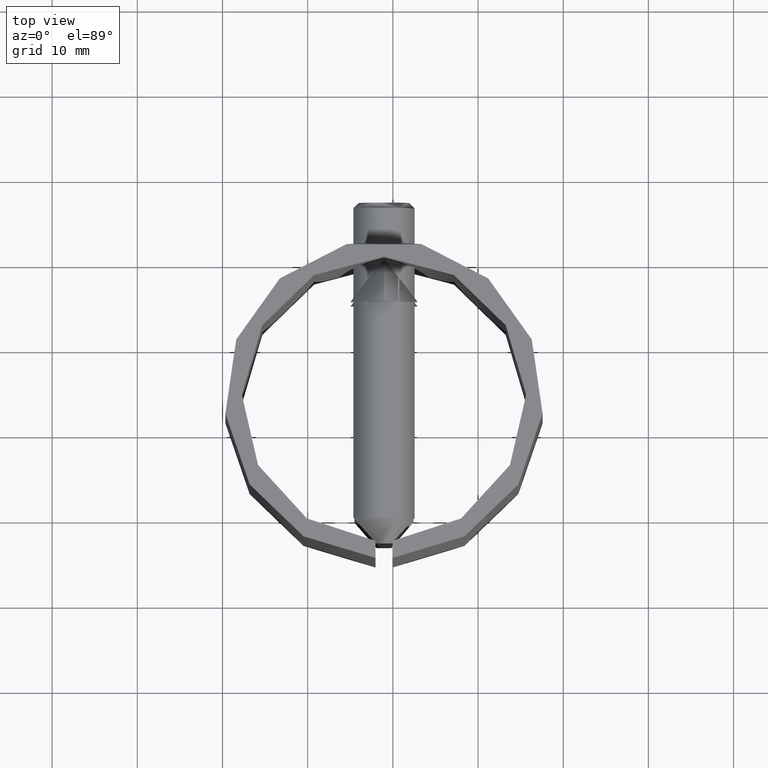
[diagram: clean part render]
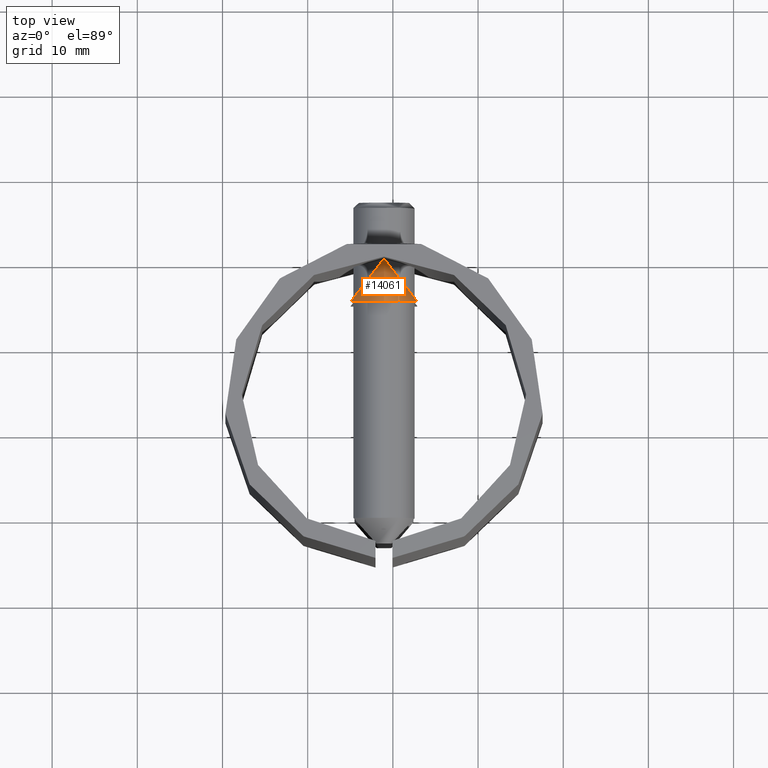
[diagram: same view with one face highlighted and labeled with its STEP entity id]
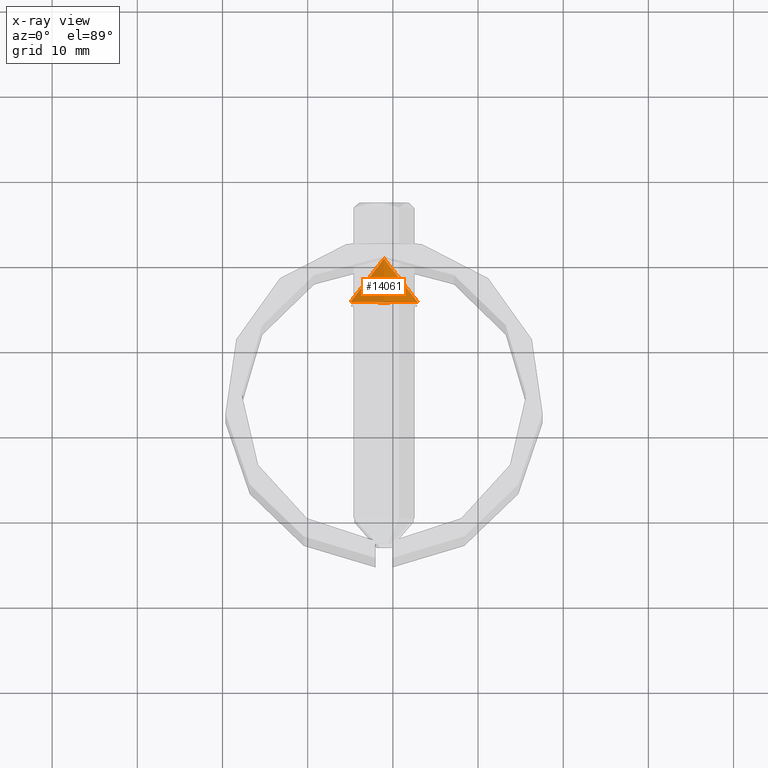
[diagram: x-ray of the same camera — body ghosted, the highlighted face saturated]
A machine part, top view. The second image highlights one B-rep face of the part: STEP entity #14061.
The next image is the same camera in x-ray: the body ghosted, the highlighted face saturated — about 0% of this face is hidden behind the body in this view.
In plain terms, the highlighted cylindrical surface (bore or boss wall) has radius 4.5 mm, axis along (0, 1, 0).
Its self-contained STEP definition (entity closure, byte-faithful):
#117 = CIRCLE ( 'NONE', #817, 4.500000000000000888 ) ;
#160 = ORIENTED_EDGE ( 'NONE', *, *, #1329, .F. ) ;
#506 = CARTESIAN_POINT ( 'NONE',  ( 4.470890491198900030, 16.09051785570603954, 15.59079842216551093 ) ) ;
#559 = CARTESIAN_POINT ( 'NONE',  ( -4.268515495040690055, 16.14570043999957960, 13.54471098470745893 ) ) ;
#608 = CARTESIAN_POINT ( 'NONE',  ( 2.748375749379027955, 16.47412802908328189, 11.42479650578395400 ) ) ;
#656 = CARTESIAN_POINT ( 'NONE',  ( -2.746643343665635228, 16.47442991180666994, 11.42339148774129143 ) ) ;
#768 = CARTESIAN_POINT ( 'NONE',  ( -0.5930302896287636960, 16.69199008653702165, 19.47053234141733213 ) ) ;
#817 = AXIS2_PLACEMENT_3D ( 'NONE', #11650, #10415, #4516 ) ;
#1329 = EDGE_CURVE ( 'NONE', #1750, #1750, #8786, .T. ) ;
#1678 = CARTESIAN_POINT ( 'NONE',  ( -0.2925769808828751484, 16.70003373056801976, 10.49987482210366352 ) ) ;
#1721 = CARTESIAN_POINT ( 'NONE',  ( 2.000204359931899933, 16.58204028912541617, 19.04179059477910840 ) ) ;
#1750 = VERTEX_POINT ( 'NONE', #8645 ) ;
#1780 = CARTESIAN_POINT ( 'NONE',  ( 4.499808343424470891, 16.08234202197142437, 15.29791367726360640 ) ) ;
#1784 = CYLINDRICAL_SURFACE ( 'NONE', #5637, 4.500000000000000888 ) ;
#1831 = CARTESIAN_POINT ( 'NONE',  ( 2.258148842555752545, 16.54846508949552941, 18.90345852644554725 ) ) ;
#1887 = CARTESIAN_POINT ( 'NONE',  ( 3.902897937544604456, 16.23838654004546811, 12.74105340024263988 ) ) ;
#1937 = CARTESIAN_POINT ( 'NONE',  ( -1.459701212497980016, 16.63831447223115134, 19.26678564235425029 ) ) ;
#2884 = CARTESIAN_POINT ( 'NONE',  ( 4.267554316713609630, 16.14594239223548655, 16.45730534514077092 ) ) ;
#2940 = CARTESIAN_POINT ( 'NONE',  ( -3.901566149001846284, 16.23870721294601793, 12.73877067598393253 ) ) ;
#3037 = CARTESIAN_POINT ( 'NONE',  ( -4.471188628227773521, 16.09043278604966076, 15.58779499729386764 ) ) ;
#3091 = CARTESIAN_POINT ( 'NONE',  ( -4.040401178127398296, 16.20429034389941236, 12.99669049589926750 ) ) ;
#3147 = CARTESIAN_POINT ( 'NONE',  ( -1.172625383541805233, 16.66130750221423895, 19.35457162645752049 ) ) ;
#3290 = DIRECTION ( 'NONE',  ( 0.000000000000000000, 0.000000000000000000, 1.000000000000000000 ) ) ;
#3799 = EDGE_LOOP ( 'NONE', ( #12874 ) ) ;
#4095 = CARTESIAN_POINT ( 'NONE',  ( 3.389144942174509012, 16.35383519160921040, 17.97472346730088688 ) ) ;
#4141 = CARTESIAN_POINT ( 'NONE',  ( 4.269806211873104829, 16.14535411475638682, 13.54869544088589173 ) ) ;
#4183 = CARTESIAN_POINT ( 'NONE',  ( 1.998589146683237949, 16.58222250743602544, 10.95747186581912125 ) ) ;
#4231 = CARTESIAN_POINT ( 'NONE',  ( 3.574898314709949343, 16.31375436233777876, 17.74909251273416899 ) ) ;
#4284 = CARTESIAN_POINT ( 'NONE',  ( -2.259531450430126487, 16.54828641249962473, 18.90272636191454581 ) ) ;
#4516 = DIRECTION ( 'NONE',  ( 0.000000000000000000, 0.000000000000000000, -1.000000000000000000 ) ) ;
#5215 = CARTESIAN_POINT ( 'NONE',  ( -3.387629732327249066, 16.35416474197154102, 12.02340942405186652 ) ) ;
#5260 = CARTESIAN_POINT ( 'NONE',  ( 0.2964150078807203381, 16.69996604891623804, 10.50012599625477172 ) ) ;
#5327 = EDGE_LOOP ( 'NONE', ( #160 ) ) ;
#5367 = CARTESIAN_POINT ( 'NONE',  ( 1.175174152185601395, 16.66113198993156530, 10.64609741612724925 ) ) ;
#5406 = CARTESIAN_POINT ( 'NONE',  ( 2.262154153437302195, 16.54790386014157022, 11.09893503374838630 ) ) ;
#5637 = AXIS2_PLACEMENT_3D ( 'NONE', #15244, #8067, #3290 ) ;
#6378 = CARTESIAN_POINT ( 'NONE',  ( 1.455761788551132918, 16.63866639723124763, 10.73184467153801869 ) ) ;
#6438 = CARTESIAN_POINT ( 'NONE',  ( 4.042686735624697825, 16.20370820328149009, 16.99810977493253716 ) ) ;
#6492 = CARTESIAN_POINT ( 'NONE',  ( 3.903844913162763497, 16.23817952386241004, 17.25774278828663100 ) ) ;
#6590 = CARTESIAN_POINT ( 'NONE',  ( 0.5951172566808970998, 16.69191986934656668, 10.52972736305494905 ) ) ;
#7598 = CARTESIAN_POINT ( 'NONE',  ( -4.043645610435443238, 16.20347013482832921, 16.99629666837947539 ) ) ;
#7648 = CARTESIAN_POINT ( 'NONE',  ( -2.972335163148599690, 16.43471822967473273, 11.60863591779337334 ) ) ;
#7694 = CARTESIAN_POINT ( 'NONE',  ( 4.355199484842283475, 16.12221508448604723, 13.82988731795292736 ) ) ;
#7754 = CARTESIAN_POINT ( 'NONE',  ( -1.995316474912114391, 16.58261225314001308, 10.95588233425839597 ) ) ;
#7810 = CARTESIAN_POINT ( 'NONE',  ( -4.500130708670076807, 16.08225182066961167, 15.29477749636082784 ) ) ;
#7856 = CARTESIAN_POINT ( 'NONE',  ( -2.977698323745668674, 16.43372945742652647, 18.38651910219816443 ) ) ;
#8067 = DIRECTION ( 'NONE',  ( -0.000000000000000000, 1.000000000000000000, 0.000000000000000000 ) ) ;
#8626 = VERTEX_POINT ( 'NONE', #9844 ) ;
#8645 = CARTESIAN_POINT ( 'NONE',  ( 0.000000000000000000, 16.69999999999999929, 19.50000000000000000 ) ) ;
#8780 = CARTESIAN_POINT ( 'NONE',  ( 0.2987731304651032316, 16.69999999999999929, 19.49999999999999645 ) ) ;
#8786 = B_SPLINE_CURVE_WITH_KNOTS ( 'NONE', 3,
 ( #13647, #8780, #11357, #14758, #13703, #1721, #1831, #13590, #9971, #4095, #4231, #6492, #6438, #2884, #14816, #506, #1780, #8831, #11261, #7694, #4141, #12290, #1887, #10177, #12444, #12342, #608, #5406, #4183, #6378, #5367, #6590, #5260, #1678, #11162, #10064, #14877, #7754, #13553, #656, #7648, #5215, #14921, #2940, #3091, #559, #8936, #10123, #11208, #7810, #3037, #11313, #14703, #7598, #10021, #13798, #13752, #7856, #12597, #4284, #9039, #1937, #3147, #768, #10228, #11405 ),
 .UNSPECIFIED., .T., .F.,
 ( 4, 2, 2, 2, 2, 2, 2, 2, 2, 2, 2, 2, 2, 2, 2, 2, 2, 2, 2, 2, 2, 2, 2, 2, 2, 2, 2, 2, 2, 2, 2, 2, 4 ),
 ( 0.000000000000000000, 0.0008832960947161931078, 0.001766592189432386216, 0.002649888284148580516, 0.003533184378864774166, 0.004416480473580967382, 0.005299776568297161032, 0.006183072663013353815, 0.007066368757729546597, 0.007949664852445739380, 0.008832960947161933030, 0.009716257041878126680, 0.01059955313659432033, 0.01148284923131051224, 0.01236614532602670589, 0.01324944142074289954, 0.01413273751545909319, 0.01501603361017528684, 0.01589932970489147876, 0.01678262579960767414, 0.01766592189432386606, 0.01854921798904005797, 0.01943251408375625336, 0.02031581017847244527, 0.02119910627318864066, 0.02208240236790483257, 0.02296569846262102102, 0.02384899455733721294, 0.02473229065205340138, 0.02561558674676958983, 0.02649888284148578174, 0.02738217893620197366, 0.02826547503091816210 ),
 .UNSPECIFIED. ) ;
#8831 = CARTESIAN_POINT ( 'NONE',  ( 4.500189775828866701, 16.08223529304137855, 14.70790469333016226 ) ) ;
#8839 = FACE_OUTER_BOUND ( 'NONE', #5327, .T. ) ;
#8936 = CARTESIAN_POINT ( 'NONE',  ( -4.354406454622889555, 16.12242947765906464, 13.82718727196515651 ) ) ;
#9039 = CARTESIAN_POINT ( 'NONE',  ( -2.001693100911048351, 16.58184129813059826, 19.04096672559098380 ) ) ;
#9844 = CARTESIAN_POINT ( 'NONE',  ( 0.000000000000000000, 11.69999999999999929, 10.49999999999999822 ) ) ;
#9971 = CARTESIAN_POINT ( 'NONE',  ( 2.976240692757665229, 16.43399586990809524, 18.38781264014864547 ) ) ;
#10021 = CARTESIAN_POINT ( 'NONE',  ( -3.905549439049976979, 16.23776621333881209, 17.25476297301918294 ) ) ;
#10064 = CARTESIAN_POINT ( 'NONE',  ( -1.171543008678396891, 16.66142853428618409, 10.64496206500182574 ) ) ;
#10123 = CARTESIAN_POINT ( 'NONE',  ( -4.469946807488210716, 16.09077883050963464, 14.40340901337015644 ) ) ;
#10177 = CARTESIAN_POINT ( 'NONE',  ( 3.577846108863577346, 16.31308759726709567, 12.25510122723349937 ) ) ;
#10228 = CARTESIAN_POINT ( 'NONE',  ( -0.2987731304651019548, 16.69999999999999929, 19.49999999999999645 ) ) ;
#10415 = DIRECTION ( 'NONE',  ( 0.000000000000000000, -1.000000000000000000, 0.000000000000000000 ) ) ;
#11162 = CARTESIAN_POINT ( 'NONE',  ( -0.5868165279462986827, 16.69225449682690154, 10.52847735117159012 ) ) ;
#11208 = CARTESIAN_POINT ( 'NONE',  ( -4.499868412494326009, 16.08232521399758141, 14.70124518796846225 ) ) ;
#11261 = CARTESIAN_POINT ( 'NONE',  ( 4.470640906022956607, 16.09058580886955880, 14.40814179835695974 ) ) ;
#11313 = CARTESIAN_POINT ( 'NONE',  ( -4.356181262843054292, 16.12194900738834846, 16.16649711242341425 ) ) ;
#11357 = CARTESIAN_POINT ( 'NONE',  ( 0.5922852173470245507, 16.69199408748207603, 19.47054250787893892 ) ) ;
#11405 = CARTESIAN_POINT ( 'NONE',  ( 1.084202172485504434E-16, 16.69999999999999929, 19.49999999999999645 ) ) ;
#11650 = CARTESIAN_POINT ( 'NONE',  ( 0.000000000000000000, 11.69999999999999929, 15.00000000000000000 ) ) ;
#12290 = CARTESIAN_POINT ( 'NONE',  ( 4.043040720485009842, 16.20362694924599367, 13.00216323420666065 ) ) ;
#12342 = CARTESIAN_POINT ( 'NONE',  ( 2.974034781528952731, 16.43441706392892243, 11.61005058271652324 ) ) ;
#12444 = CARTESIAN_POINT ( 'NONE',  ( 3.390280586799457208, 16.35362175958809061, 12.02634274398422498 ) ) ;
#12597 = CARTESIAN_POINT ( 'NONE',  ( -2.748971595949051938, 16.47405295397184233, 18.57490008197865450 ) ) ;
#12874 = ORIENTED_EDGE ( 'NONE', *, *, #15035, .F. ) ;
#12895 = FACE_OUTER_BOUND ( 'NONE', #3799, .T. ) ;
#13553 = CARTESIAN_POINT ( 'NONE',  ( -2.258696272588159637, 16.54838909756865917, 11.09686417665736613 ) ) ;
#13590 = CARTESIAN_POINT ( 'NONE',  ( 2.746267986077399303, 16.47449377559245320, 18.57690324323467124 ) ) ;
#13647 = CARTESIAN_POINT ( 'NONE',  ( 1.084202172485504434E-16, 16.69999999999999929, 19.49999999999999645 ) ) ;
#13703 = CARTESIAN_POINT ( 'NONE',  ( 1.455866566075790791, 16.63866972367237551, 19.26817774176733167 ) ) ;
#13752 = CARTESIAN_POINT ( 'NONE',  ( -3.390233381764852005, 16.35360721077442392, 17.97346877467345649 ) ) ;
#13798 = CARTESIAN_POINT ( 'NONE',  ( -3.577255866272028406, 16.31323415166757940, 17.74599944511725980 ) ) ;
#14061 = ADVANCED_FACE ( 'NONE', ( #8839, #12895 ), #1784, .T. ) ;
#14703 = CARTESIAN_POINT ( 'NONE',  ( -4.268831468465055679, 16.14560596964108541, 16.45373591302521987 ) ) ;
#14758 = CARTESIAN_POINT ( 'NONE',  ( 1.169298940864851977, 16.66151878977774814, 19.35537507917890920 ) ) ;
#14816 = CARTESIAN_POINT ( 'NONE',  ( 4.354728083730723398, 16.12234381117877646, 16.17228318963163503 ) ) ;
#14877 = CARTESIAN_POINT ( 'NONE',  ( -1.453007278012548475, 16.63890281307897823, 10.73093155601113580 ) ) ;
#14921 = CARTESIAN_POINT ( 'NONE',  ( -3.576387383347925386, 16.31340809417369542, 12.25321465071312232 ) ) ;
#15035 = EDGE_CURVE ( 'NONE', #8626, #8626, #117, .T. ) ;
#15244 = CARTESIAN_POINT ( 'NONE',  ( 0.000000000000000000, 11.69999999999999929, 15.00000000000000000 ) ) ;